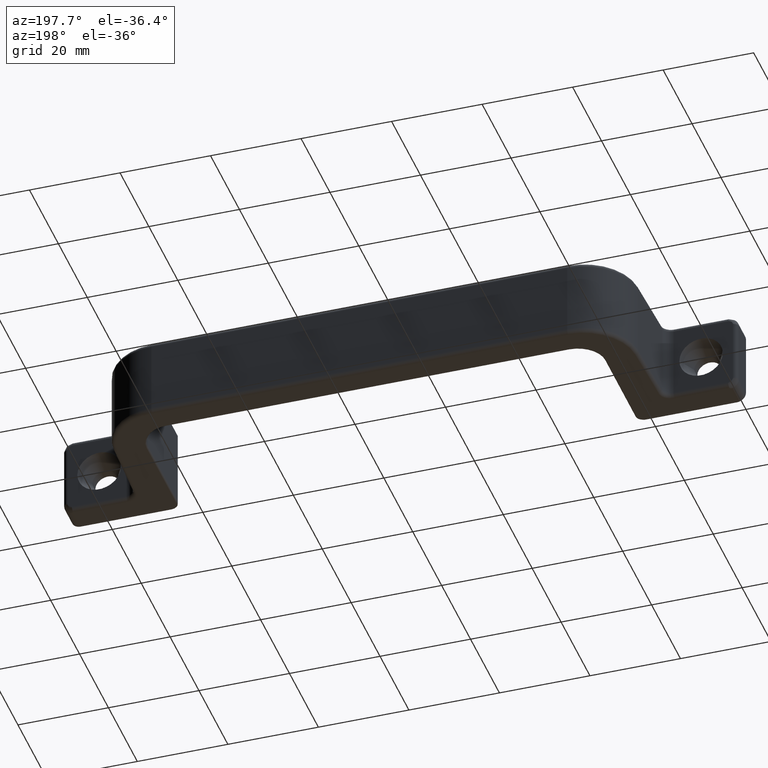
[diagram: clean part render]
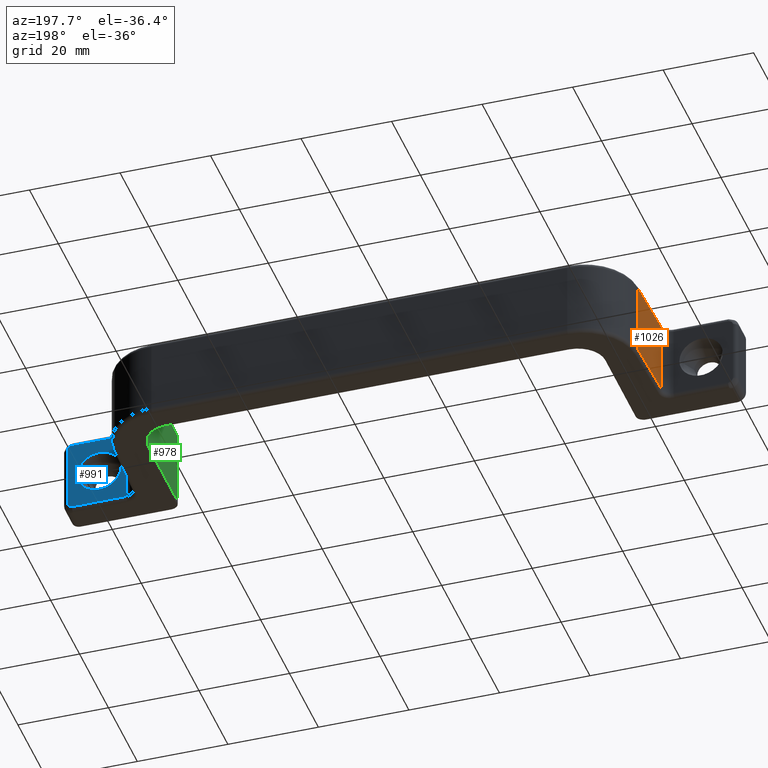
[diagram: same view with three faces highlighted in distinct colors, each labeled with its STEP entity id]
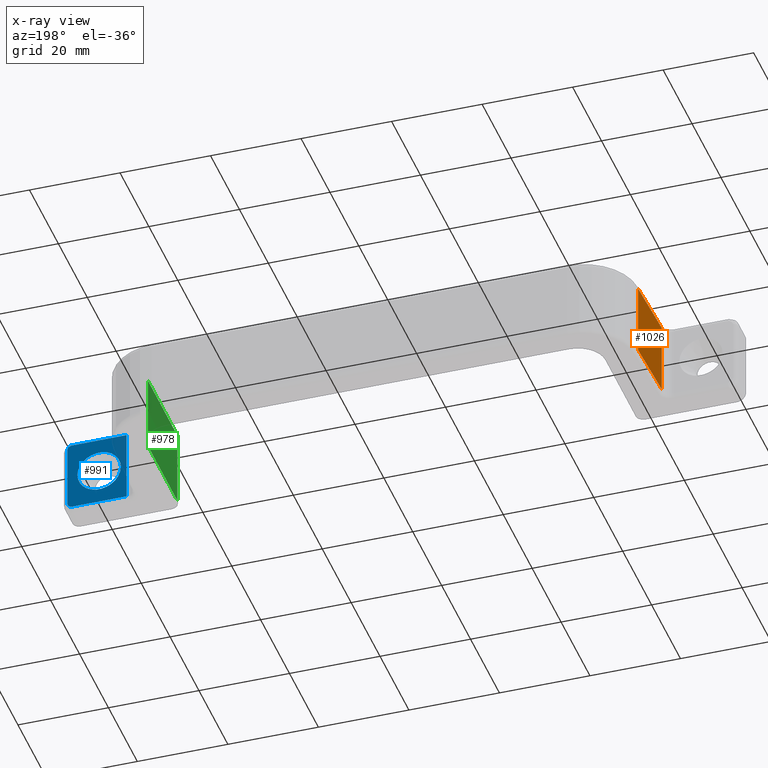
[diagram: x-ray of the same camera — body ghosted, the three highlighted faces saturated]
A machine part, auxiliary view with three faces highlighted in distinct colors.
The next image is the same camera in x-ray (body ghosted, the three faces saturated) — at least one of them is partly hidden behind the body in this view.
Their STEP definitions:

[orange] entity #1026 — the highlighted planar face has unit normal (-0.9994, 0.0349, 0).
#27=PLANE('',#1164);
#93=LINE('',#1788,#159);
#101=LINE('',#1852,#167);
#105=LINE('',#1865,#171);
#106=LINE('',#1867,#172);
#159=VECTOR('',#1417,14.7976072563576);
#167=VECTOR('',#1469,14.7976072563576);
#171=VECTOR('',#1487,16.);
#172=VECTOR('',#1490,16.);
#276=FACE_OUTER_BOUND('',#347,.T.);
#347=EDGE_LOOP('',(#898,#899,#900,#901));
#499=VERTEX_POINT('',#1778);
#501=VERTEX_POINT('',#1784);
#515=VERTEX_POINT('',#1842);
#517=VERTEX_POINT('',#1848);
#630=EDGE_CURVE('',#499,#501,#93,.T.);
#654=EDGE_CURVE('',#515,#517,#101,.T.);
#661=EDGE_CURVE('',#501,#515,#105,.T.);
#662=EDGE_CURVE('',#499,#517,#106,.T.);
#898=ORIENTED_EDGE('',*,*,#654,.F.);
#899=ORIENTED_EDGE('',*,*,#661,.F.);
#900=ORIENTED_EDGE('',*,*,#630,.F.);
#901=ORIENTED_EDGE('',*,*,#662,.T.);
#1026=ADVANCED_FACE('',(#276),#27,.T.);
#1164=AXIS2_PLACEMENT_3D('',#1866,#1488,#1489);
#1417=DIRECTION('',(-0.0348994967025004,-0.999390827019096,0.));
#1469=DIRECTION('',(0.0348994967025004,0.999390827019096,0.));
#1487=DIRECTION('',(0.,0.,-1.));
#1488=DIRECTION('center_axis',(-0.999390827019096,0.0348994967025004,0.));
#1489=DIRECTION('ref_axis',(-0.0348994967025004,-0.999390827019096,0.));
#1490=DIRECTION('',(0.,0.,-1.));
#1778=CARTESIAN_POINT('',(16.5838331500722,22.71879396043,8.));
#1784=CARTESIAN_POINT('',(16.067404104424,7.93020100659501,8.));
#1788=CARTESIAN_POINT('',(16.5623399962125,22.1033105626547,8.));
#1842=CARTESIAN_POINT('',(16.067404104424,7.93020100659501,-8.));
#1848=CARTESIAN_POINT('',(16.5838331500722,22.71879396043,-8.));
#1852=CARTESIAN_POINT('',(16.5623399962125,22.1033105626547,-8.));
#1865=CARTESIAN_POINT('',(16.067404104424,7.93020100659501,0.));
#1866=CARTESIAN_POINT('Origin',(16.5838331500722,22.71879396043,0.));
#1867=CARTESIAN_POINT('',(16.5838331500722,22.71879396043,0.));

[blue] entity #991 — the highlighted planar face has unit normal (-0, -1, 0).
#20=PLANE('',#1092);
#59=LINE('',#1612,#125);
#61=LINE('',#1632,#127);
#63=LINE('',#1652,#129);
#67=LINE('',#1673,#133);
#125=VECTOR('',#1257,12.0686224503858);
#127=VECTOR('',#1269,14.);
#129=VECTOR('',#1281,12.0686224503858);
#133=VECTOR('',#1307,16.);
#215=FACE_BOUND('',#308,.T.);
#241=FACE_OUTER_BOUND('',#307,.T.);
#307=EDGE_LOOP('',(#751,#752,#753,#754,#755,#756));
#308=EDGE_LOOP('',(#757));
#357=CIRCLE('',#1038,4.8);
#380=CIRCLE('',#1073,1.);
#384=CIRCLE('',#1078,1.);
#435=VERTEX_POINT('',#1521);
#458=VERTEX_POINT('',#1603);
#460=VERTEX_POINT('',#1609);
#462=VERTEX_POINT('',#1623);
#464=VERTEX_POINT('',#1629);
#466=VERTEX_POINT('',#1643);
#468=VERTEX_POINT('',#1649);
#525=EDGE_CURVE('',#435,#435,#357,.T.);
#559=EDGE_CURVE('',#458,#460,#59,.T.);
#562=EDGE_CURVE('',#460,#462,#380,.T.);
#565=EDGE_CURVE('',#462,#464,#61,.T.);
#568=EDGE_CURVE('',#464,#466,#384,.T.);
#571=EDGE_CURVE('',#466,#468,#63,.T.);
#582=EDGE_CURVE('',#468,#458,#67,.T.);
#751=ORIENTED_EDGE('',*,*,#571,.T.);
#752=ORIENTED_EDGE('',*,*,#582,.T.);
#753=ORIENTED_EDGE('',*,*,#559,.T.);
#754=ORIENTED_EDGE('',*,*,#562,.T.);
#755=ORIENTED_EDGE('',*,*,#565,.T.);
#756=ORIENTED_EDGE('',*,*,#568,.T.);
#757=ORIENTED_EDGE('',*,*,#525,.F.);
#991=ADVANCED_FACE('',(#241,#215),#20,.F.);
#1038=AXIS2_PLACEMENT_3D('',#1522,#1179,#1180);
#1073=AXIS2_PLACEMENT_3D('',#1626,#1261,#1262);
#1078=AXIS2_PLACEMENT_3D('',#1646,#1273,#1274);
#1092=AXIS2_PLACEMENT_3D('',#1672,#1305,#1306);
#1179=DIRECTION('center_axis',(2.77555756156289E-16,1.,0.));
#1180=DIRECTION('ref_axis',(-1.,2.77555756156289E-16,-9.19925226917394E-17));
#1257=DIRECTION('',(1.,-2.77555756156289E-16,0.));
#1261=DIRECTION('center_axis',(2.77555756156289E-16,1.,0.));
#1262=DIRECTION('ref_axis',(0.707106781186548,-1.96261557335472E-16,0.707106781186547));
#1269=DIRECTION('',(0.,0.,-1.));
#1273=DIRECTION('center_axis',(2.77555756156289E-16,1.,0.));
#1274=DIRECTION('ref_axis',(0.707106781186548,-1.96261557335472E-16,-0.707106781186547));
#1281=DIRECTION('',(-1.,2.77555756156289E-16,0.));
#1305=DIRECTION('center_axis',(-2.77555756156289E-16,-1.,0.));
#1306=DIRECTION('ref_axis',(1.,-2.66453525910038E-16,0.));
#1307=DIRECTION('',(0.,0.,1.));
#1521=CARTESIAN_POINT('',(136.2,6.,6.68658915704807E-16));
#1522=CARTESIAN_POINT('Origin',(141.,6.,1.11022302462516E-15));
#1603=CARTESIAN_POINT('',(134.931377549614,6.00000000000001,8.));
#1609=CARTESIAN_POINT('',(147.,6.,8.));
#1612=CARTESIAN_POINT('',(124.101730996142,6.00000000000001,8.));
#1623=CARTESIAN_POINT('',(148.,6.,7.));
#1626=CARTESIAN_POINT('Origin',(147.,6.,7.));
#1629=CARTESIAN_POINT('',(148.,6.,-7.));
#1632=CARTESIAN_POINT('',(148.,6.,0.));
#1643=CARTESIAN_POINT('',(147.,6.,-8.));
#1646=CARTESIAN_POINT('Origin',(147.,6.,-7.));
#1649=CARTESIAN_POINT('',(134.931377549614,6.00000000000001,-8.));
#1652=CARTESIAN_POINT('',(124.101730996142,6.00000000000001,-8.));
#1672=CARTESIAN_POINT('Origin',(133.,6.00000000000001,0.));
#1673=CARTESIAN_POINT('',(134.931377549614,6.00000000000001,0.));

[green] entity #978 — the highlighted planar face has unit normal (1, -0, 0).
#19=PLANE('',#1057);
#49=LINE('',#1531,#115);
#51=LINE('',#1561,#117);
#54=LINE('',#1582,#120);
#55=LINE('',#1584,#121);
#115=VECTOR('',#1189,17.);
#117=VECTOR('',#1197,20.3);
#120=VECTOR('',#1222,20.3);
#121=VECTOR('',#1225,17.);
#228=FACE_OUTER_BOUND('',#294,.T.);
#294=EDGE_LOOP('',(#699,#700,#701,#702));
#438=VERTEX_POINT('',#1529);
#439=VERTEX_POINT('',#1530);
#444=VERTEX_POINT('',#1560);
#448=VERTEX_POINT('',#1572);
#528=EDGE_CURVE('',#438,#439,#49,.T.);
#534=EDGE_CURVE('',#439,#444,#51,.T.);
#545=EDGE_CURVE('',#448,#438,#54,.T.);
#546=EDGE_CURVE('',#444,#448,#55,.T.);
#699=ORIENTED_EDGE('',*,*,#534,.T.);
#700=ORIENTED_EDGE('',*,*,#546,.T.);
#701=ORIENTED_EDGE('',*,*,#545,.T.);
#702=ORIENTED_EDGE('',*,*,#528,.T.);
#978=ADVANCED_FACE('',(#228),#19,.F.);
#1057=AXIS2_PLACEMENT_3D('',#1583,#1223,#1224);
#1189=DIRECTION('',(0.,0.,1.));
#1197=DIRECTION('',(7.96572573722086E-16,1.,0.));
#1222=DIRECTION('',(-7.96572573722086E-16,-1.,0.));
#1223=DIRECTION('center_axis',(1.,-7.96572573722086E-16,0.));
#1224=DIRECTION('ref_axis',(1.4210854715202E-15,1.,0.));
#1225=DIRECTION('',(0.,0.,-1.));
#1529=CARTESIAN_POINT('',(125.,2.,-8.5));
#1530=CARTESIAN_POINT('',(125.,2.,8.5));
#1531=CARTESIAN_POINT('',(125.,2.,0.));
#1560=CARTESIAN_POINT('',(125.,22.3,8.5));
#1561=CARTESIAN_POINT('',(125.,10.4426225756365,8.5));
#1572=CARTESIAN_POINT('',(125.,22.3,-8.5));
#1582=CARTESIAN_POINT('',(125.,10.4426225756365,-8.5));
#1583=CARTESIAN_POINT('Origin',(125.,0.,0.));
#1584=CARTESIAN_POINT('',(125.,22.3,0.));